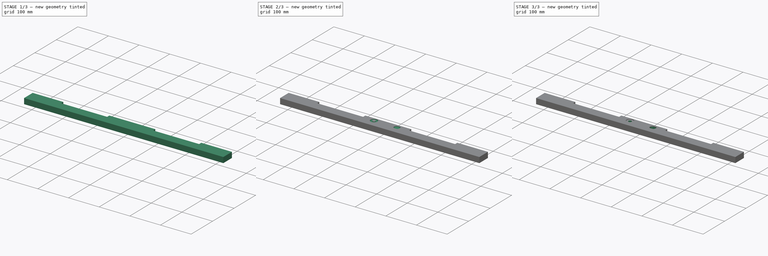
[diagram: build sequence overview — one tinted view per stage of 3, left to right]
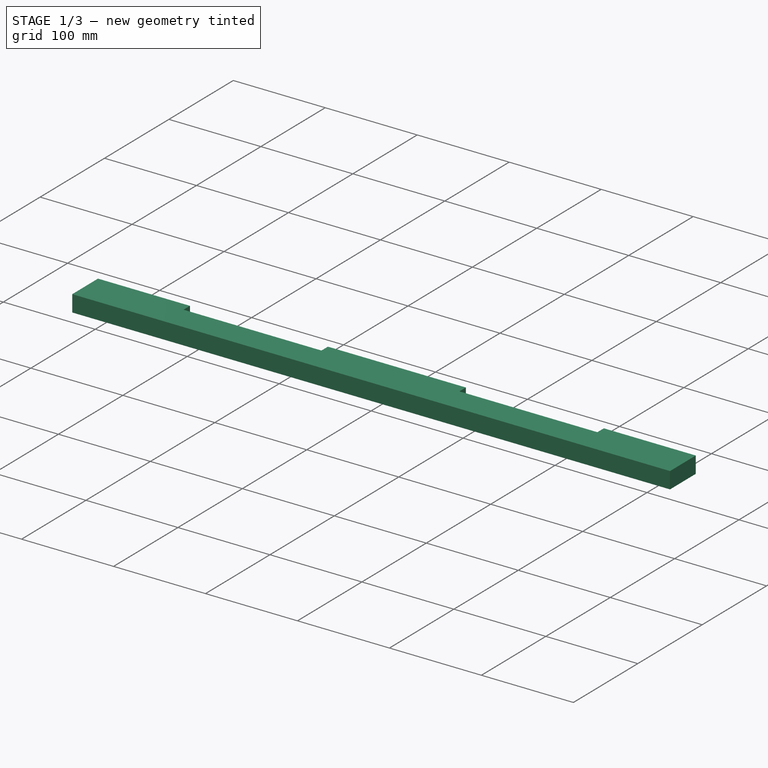
[diagram: stage 1 of 3 — iso view after this stage's code; geometry added in this stage tinted green]
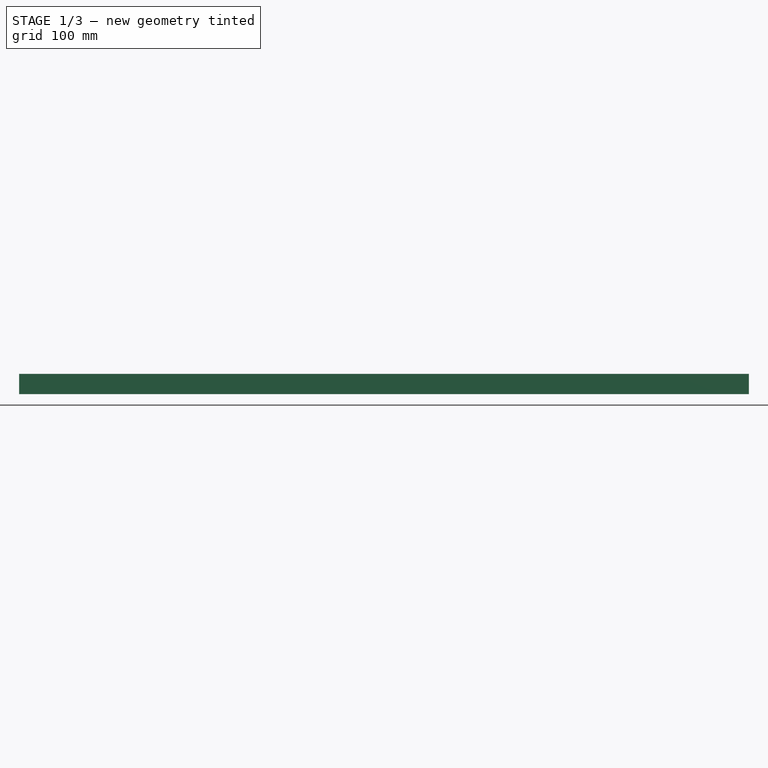
[diagram: stage 1 of 3 — front view after this stage's code; geometry added in this stage tinted green]
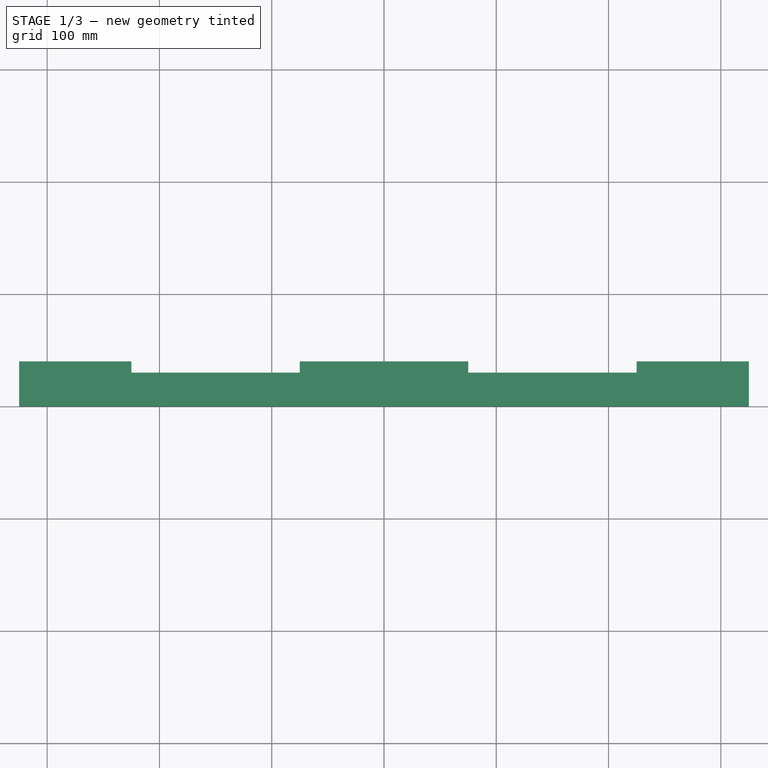
[diagram: stage 1 of 3 — top view after this stage's code; geometry added in this stage tinted green]
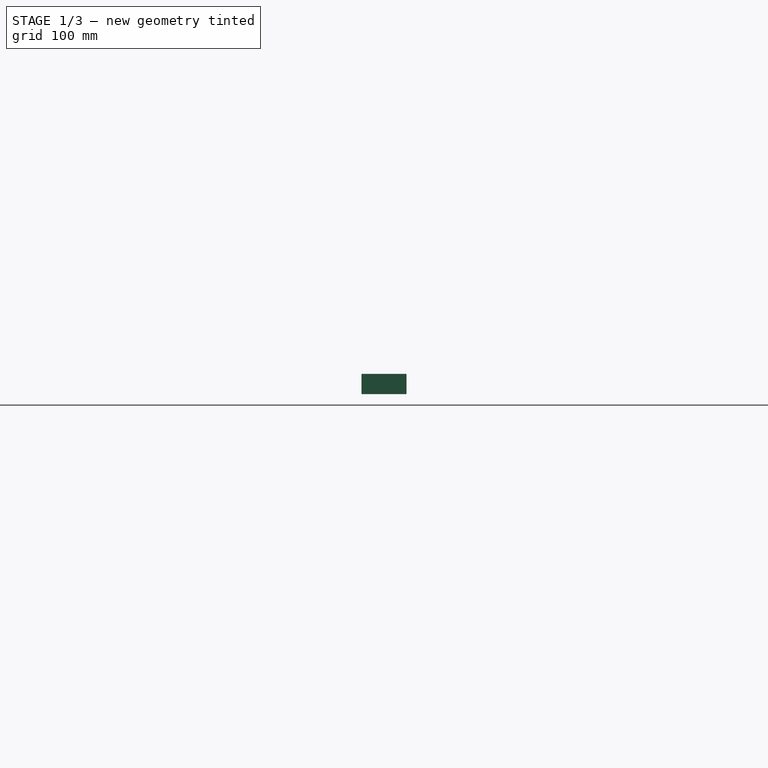
[diagram: stage 1 of 3 — right view after this stage's code; geometry added in this stage tinted green]
FCSTD DOCUMENT  (FreeCAD 0.21R33771 (Git))
Label: VerstärkungTürSchloss
License: All rights reserved
LicenseURL: http://en.wikipedia.org/wiki/All_rights_reserved
objects: PartDesign::Pocket×3, Sketcher::SketchObject×2, PartDesign::Pad×1, PartDesign::Mirrored×1, PartDesign::Plane×1, PartDesign::Body×1, TechDraw::DrawSVGTemplate×1, TechDraw::DrawViewPart×1, TechDraw::DrawPage×1
note: 13 computed .brp shape members not serialized (recipe doc carries the construction recipe); baked Part::Feature solids carry a one-line shape summary decoded from their .brp

FEATURE [Sketcher::SketchObject] Sketch
  FullyConstrained = true
  MapMode = 5
  Support = -> [XY_Plane]
  sketch-geometry (8):
    g0: LineSegment StartX=0 StartY=0 StartZ=0 EndX=-325 EndY=0 EndZ=0
    g1: LineSegment StartX=-325 StartY=0 StartZ=0 EndX=-325 EndY=40 EndZ=0
    g2: LineSegment StartX=-325 StartY=40 StartZ=0 EndX=-225 EndY=40 EndZ=0
    g3: LineSegment StartX=-225 StartY=40 StartZ=0 EndX=-225 EndY=30 EndZ=0
    g4: LineSegment StartX=-225 StartY=30 StartZ=0 EndX=-75 EndY=30 EndZ=0
    g5: LineSegment StartX=-75 StartY=30 StartZ=0 EndX=-75 EndY=40 EndZ=0
    g6: LineSegment StartX=-75 StartY=40 StartZ=0 EndX=0 EndY=40 EndZ=0
    g7: LineSegment StartX=0 StartY=40 StartZ=0 EndX=0 EndY=0 EndZ=0
  constraints (23):
    c: Coincident(g0,g-1)
    c: PointOnObject(g0,g-1)
    c: Coincident(g1,g0)
    c: Vertical(g1)
    c: Coincident(g2,g1)
    c: Horizontal(g2)
    c: Coincident(g3,g2)
    c: Coincident(g4,g3)
    c: Horizontal(g4)
    c: Coincident(g5,g4)
    c: Coincident(g6,g5)
    c: PointOnObject(g6,g-2)
    c: Horizontal(g6)
    c: Coincident(g7,g6)
    c: Coincident(g7,g0)
    c: Distance(g1,g0) = 40
    c: Distance(g0,g0) = 325
    c: Distance(g2) = 100
    c: Vertical(g3)
    c: Distance(g3) = 10
    c: Vertical(g5)
    c: Distance(g5) = 10
    c: Distance(g6) = 75
FEATURE [PartDesign::Pad] Pad
  Direction = (0,0,1)
  Length = 18
  Length2 = 10
  Profile = -> Sketch
  ReferenceAxis = -> Sketch [N_Axis]
  Type = 0
FEATURE [PartDesign::Mirrored] Mirrored
  BaseFeature = -> Pad
  MirrorPlane = -> Sketch [V_Axis]
  Originals = -> [Pad]
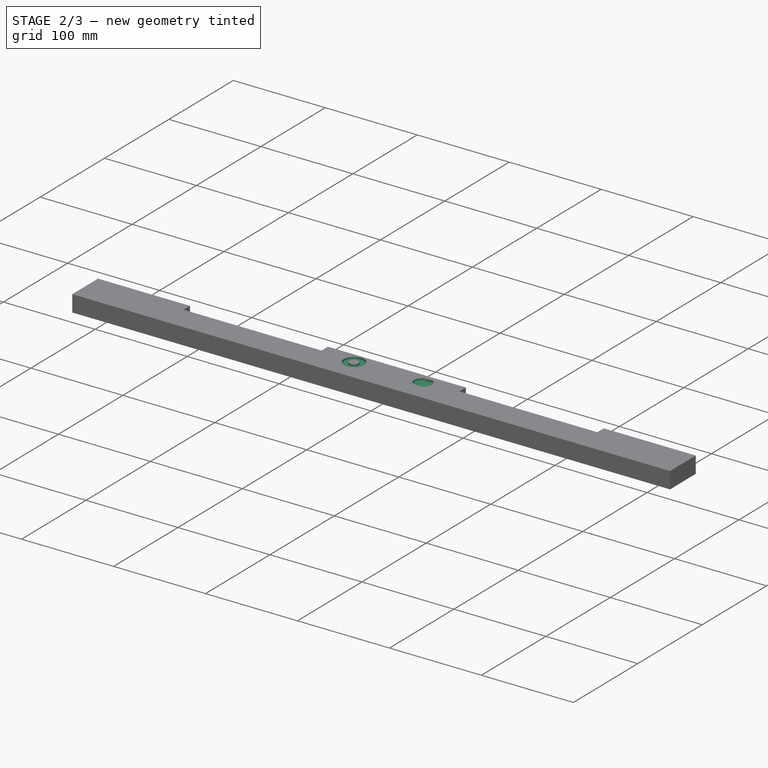
[diagram: stage 2 of 3 — iso view after this stage's code; geometry added in this stage tinted green]
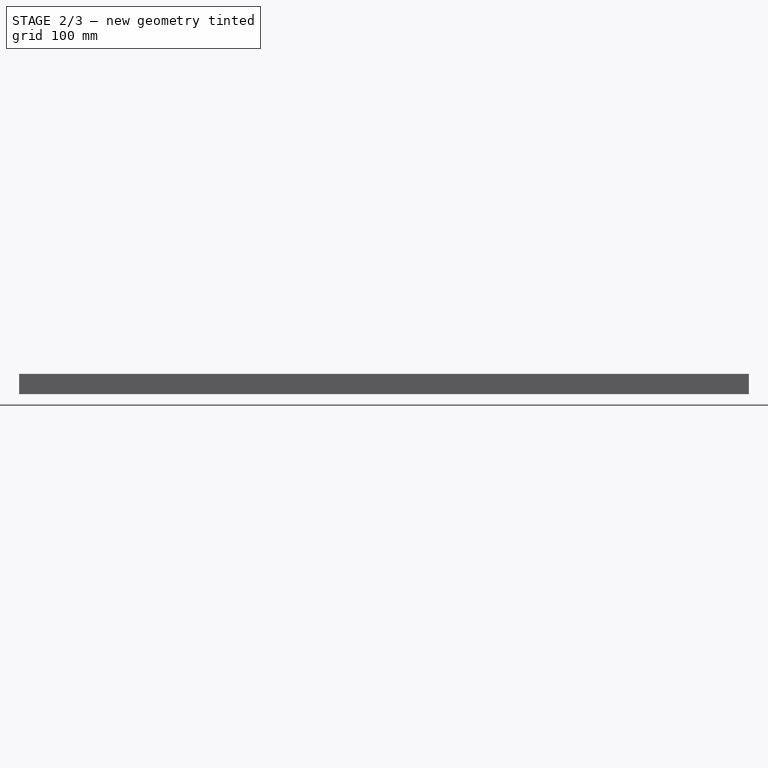
[diagram: stage 2 of 3 — front view after this stage's code; geometry added in this stage tinted green]
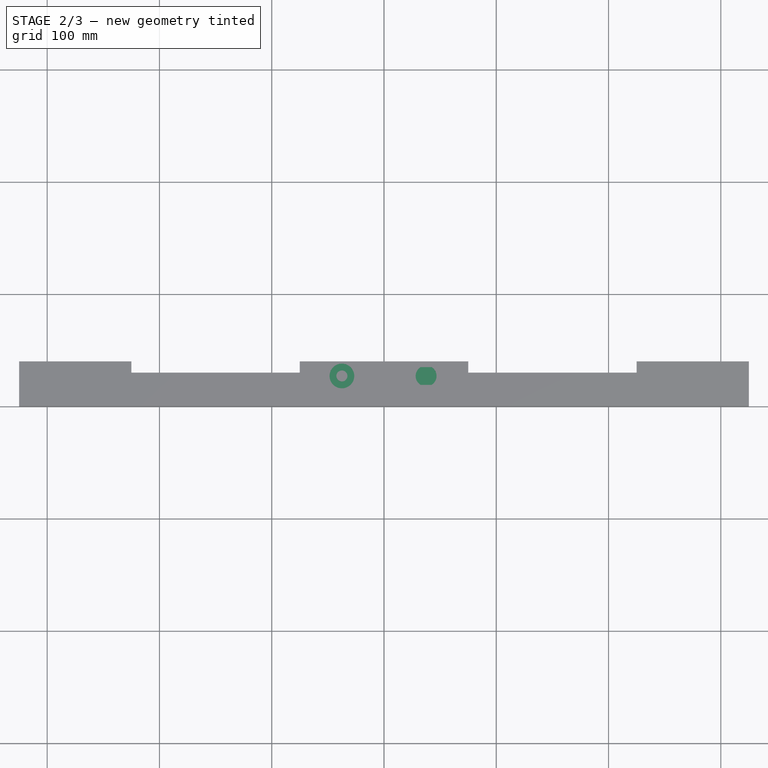
[diagram: stage 2 of 3 — top view after this stage's code; geometry added in this stage tinted green]
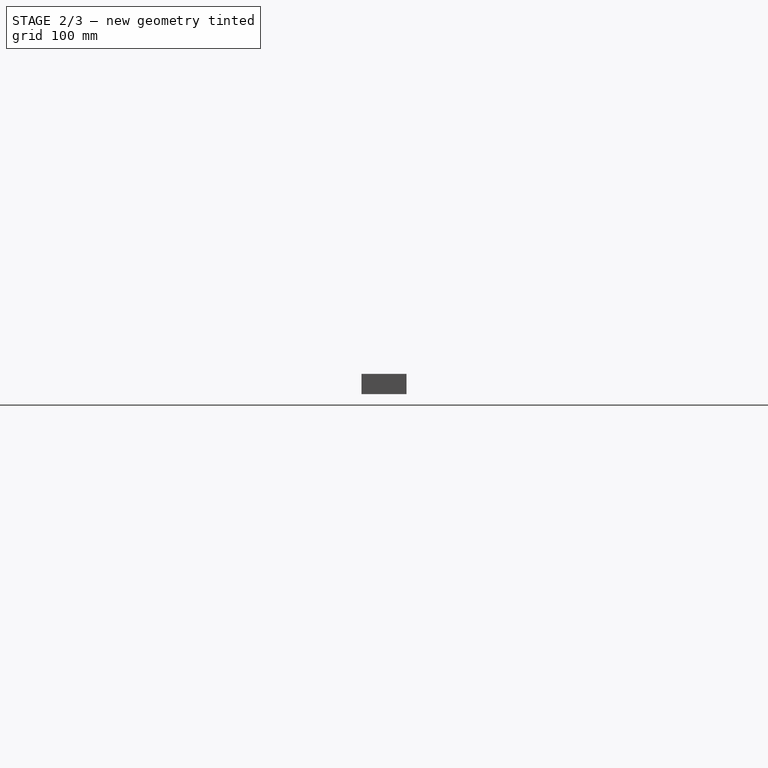
[diagram: stage 2 of 3 — right view after this stage's code; geometry added in this stage tinted green]
FEATURE [PartDesign::Plane] DatumPlane
  Length = 60
  MapMode = 5
  Placement = pos=(0,0,18) rot=(0,0,1;0rad)
  ResizeMode = 0
  Support = -> [Mirrored]
  Width = 60
FEATURE [Sketcher::SketchObject] Sketch001
  FullyConstrained = true
  MapMode = 5
  Placement = pos=(0,0,18) rot=(0,0,1;0rad)
  Support = -> [DatumPlane]
  sketch-geometry (6):
    g0: Circle CenterX=-37.5 CenterY=27 CenterZ=0 NormalX=0 NormalY=0 NormalZ=1 AngleXU=0 Radius=4.9
    g1: Circle CenterX=-37.5 CenterY=27 CenterZ=0 NormalX=0 NormalY=0 NormalZ=1 AngleXU=0 Radius=11
    g2: ArcOfCircle CenterX=37.5 CenterY=27 CenterZ=0 NormalX=0 NormalY=0 NormalZ=1 AngleXU=0 Radius=9.3 StartAngle=2.12663 EndAngle=4.15656
    g3: LineSegment StartX=32.5929 StartY=34.9 StartZ=0 EndX=42.4071 EndY=34.9 EndZ=0
    g4: LineSegment StartX=32.5929 StartY=19.1 StartZ=0 EndX=42.4071 EndY=19.1 EndZ=0
    g5: ArcOfCircle CenterX=37.5 CenterY=27 CenterZ=0 NormalX=0 NormalY=0 NormalZ=1 AngleXU=0 Radius=9.3 StartAngle=5.26822 EndAngle=7.29815
  constraints (18):
    c: Coincident(g1,g0)
    c: Diameter(g0) = 9.8
    c: Diameter(g1) = 22
    c: Distance(g0,g-1) = 27
    c: Distance(g2,g-1) = 27
    c: Diameter(g2) = 18.6
    c: Horizontal(g3)
    c: Horizontal(g4)
    c: Distance(g2,g3) = 7.9
    c: Distance(g2,g4) = 7.9
    c: Coincident(g5,g3)
    c: Coincident(g2,g3)
    c: Equal(g2,g5)
    c: Coincident(g2,g4)
    c: Coincident(g5,g4)
    c: Coincident(g2,g5)
    c: Distance(g0,g-2) = 37.5
    c: Distance(g2,g-2) = 37.5
FEATURE [PartDesign::Pocket] Pocket
  BaseFeature = -> Mirrored
  Direction = (0,0,-1)
  Length = 2
  Length2 = 5
  Profile = -> Sketch001
  ReferenceAxis = -> Sketch001 [N_Axis]
  Type = 0
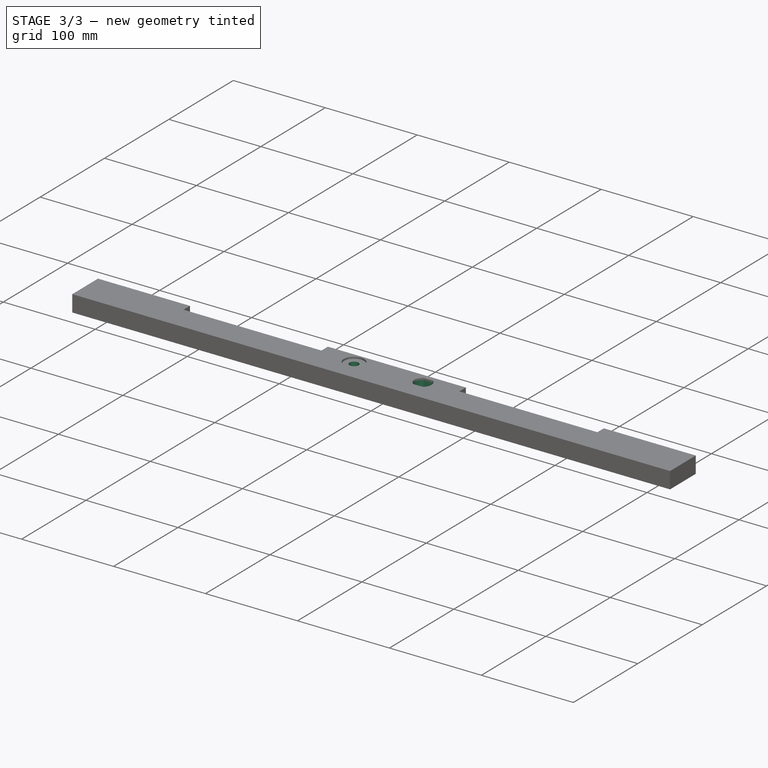
[diagram: stage 3 of 3 — iso view after this stage's code; geometry added in this stage tinted green]
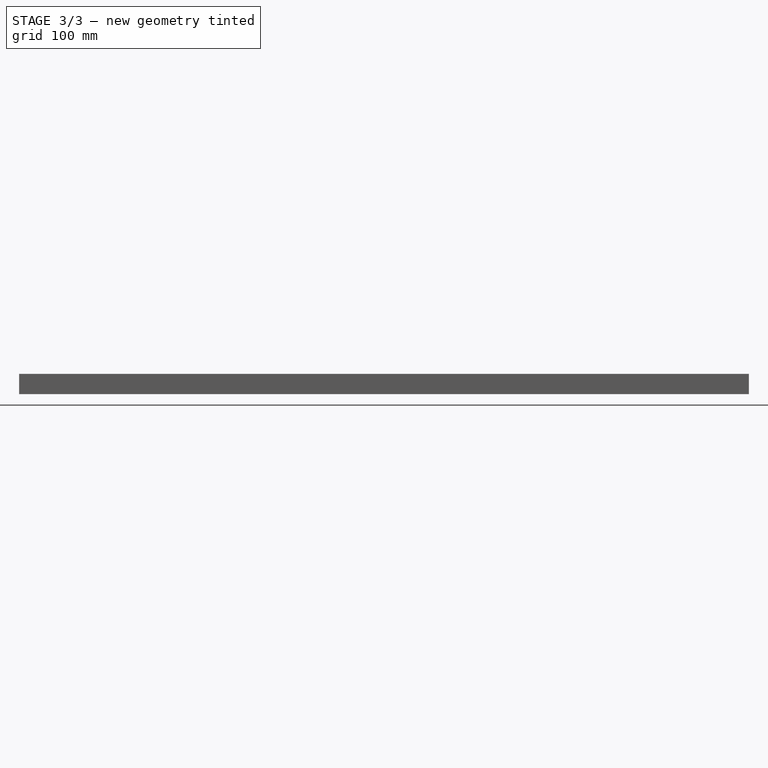
[diagram: stage 3 of 3 — front view after this stage's code; geometry added in this stage tinted green]
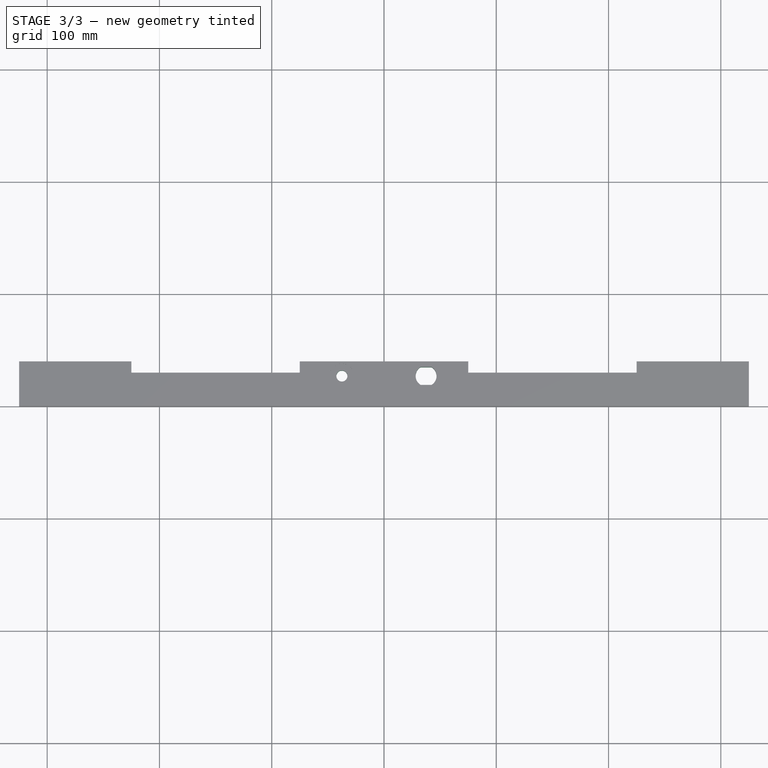
[diagram: stage 3 of 3 — top view after this stage's code; geometry added in this stage tinted green]
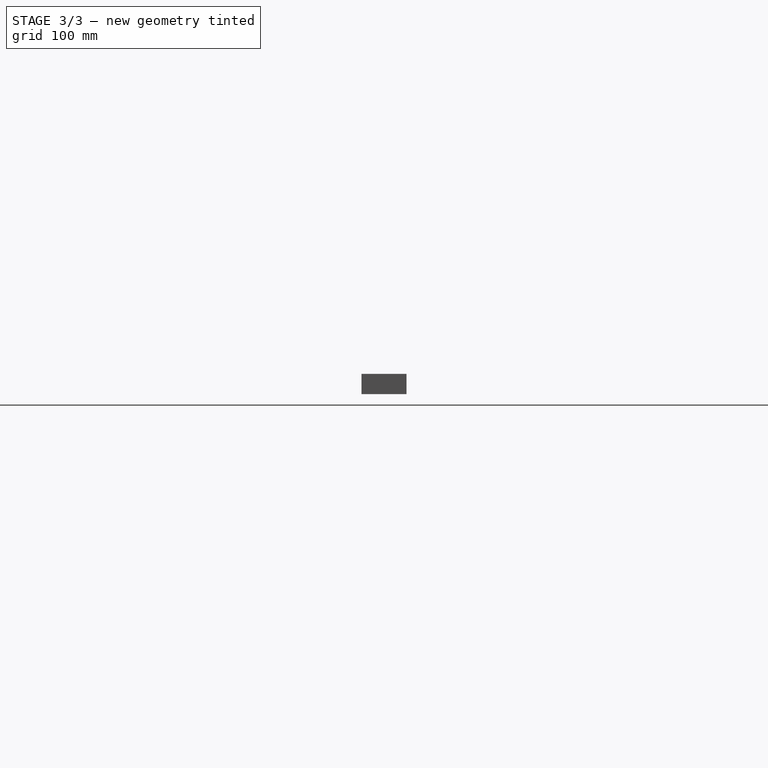
[diagram: stage 3 of 3 — right view after this stage's code; geometry added in this stage tinted green]
FEATURE [PartDesign::Pocket] Pocket001
  BaseFeature = -> Pocket
  Direction = (0,0,-1)
  Length = 20
  Length2 = 5
  Profile = -> Pocket [Face25]
  Type = 0
FEATURE [PartDesign::Pocket] Pocket002
  BaseFeature = -> Pocket001
  Direction = (0,0,-1)
  Length = 20
  Length2 = 5
  Profile = -> Pocket001 [Face30]
  Type = 0
FEATURE [PartDesign::Body] Body
  Group = -> [Sketch,Pad,Mirrored,DatumPlane,Sketch001,Pocket,Pocket001,Pocket002]
  Origin = -> Origin
  Tip = -> Pocket002
FEATURE [TechDraw::DrawSVGTemplate] Template
  Height = 594
  Orientation = 1
  Template = /Applications/FreeCAD.app/Contents/Resources/share/Mod/TechDraw/Templates/A1_Landscape_blank.svg
  Width = 841
FEATURE [TechDraw::DrawViewPart] View
  CoarseView = false
  Direction = (0,0,1)
  Focus = 100
  HardHidden = false
  IsoCount = 0
  IsoHidden = false
  IsoVisible = false
  LockPosition = false
  Perspective = false
  Rotation = 0
  ScaleType = 0
  ScrubCount = 0
  SeamHidden = false
  SeamVisible = true
  SmoothHidden = false
  SmoothVisible = true
  Source = -> [Body]
  X = 420.5
  XDirection = (1,0,0)
  Y = 297
FEATURE [TechDraw::DrawPage] Page
  KeepUpdated = true
  NextBalloonIndex = 1
  ProjectionType = 0
  Template = -> Template
  Views = -> [View]
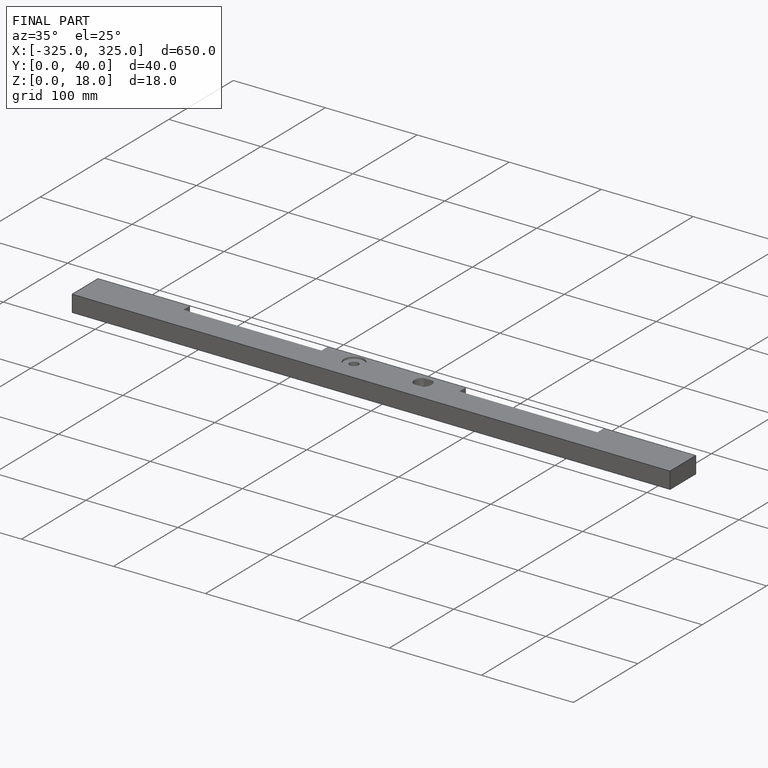
[diagram: finished part — iso view with bounding-box wireframe]
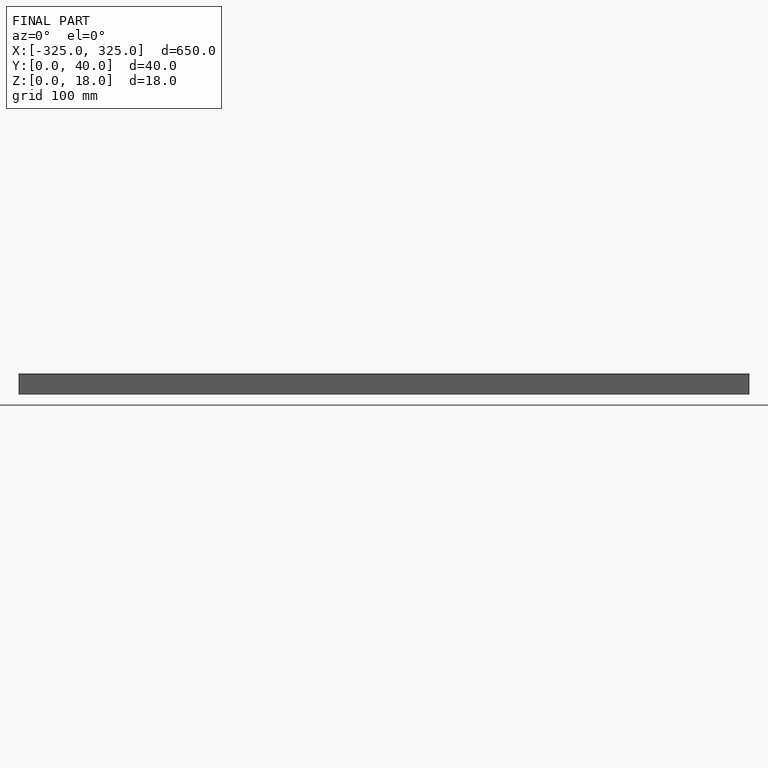
[diagram: finished part — front view with bounding-box wireframe]
